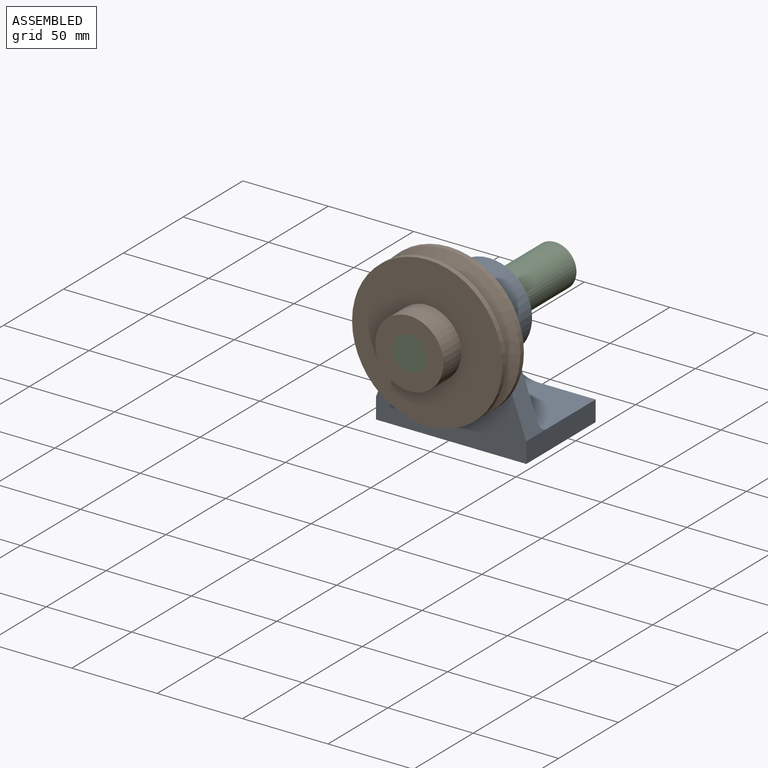
[diagram: assembled view]
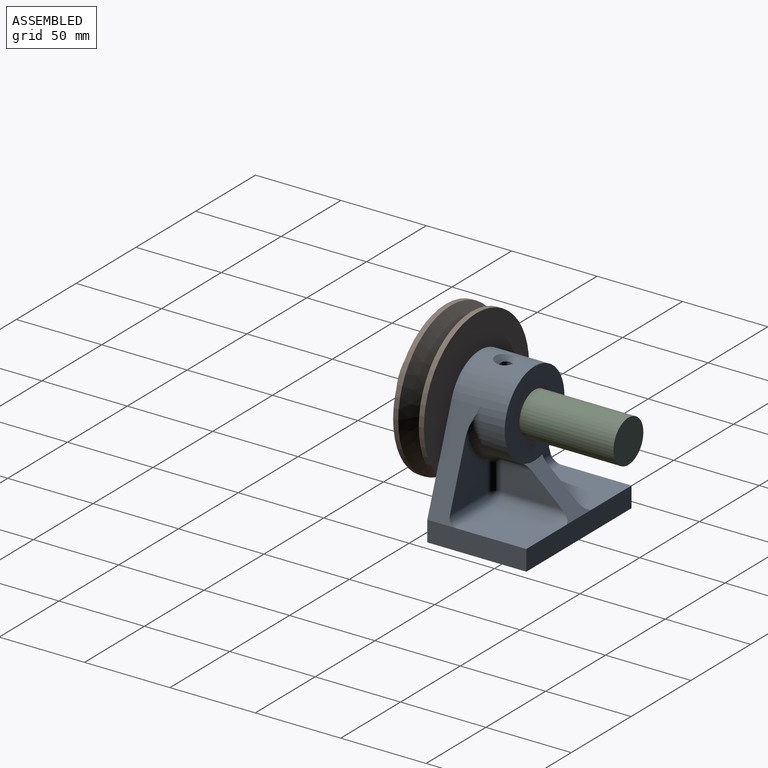
[diagram: assembled view, second angle]
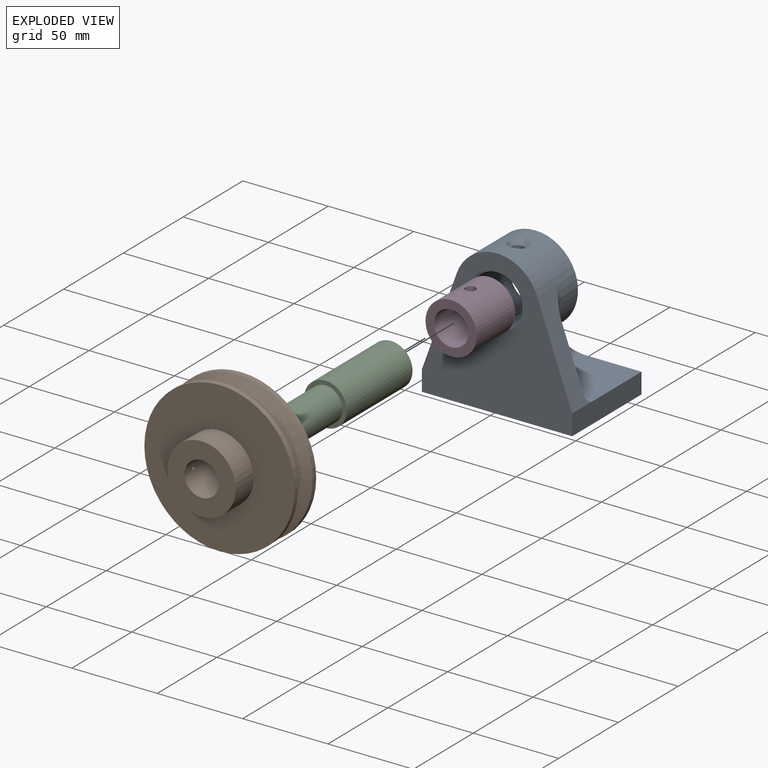
[diagram: exploded view]
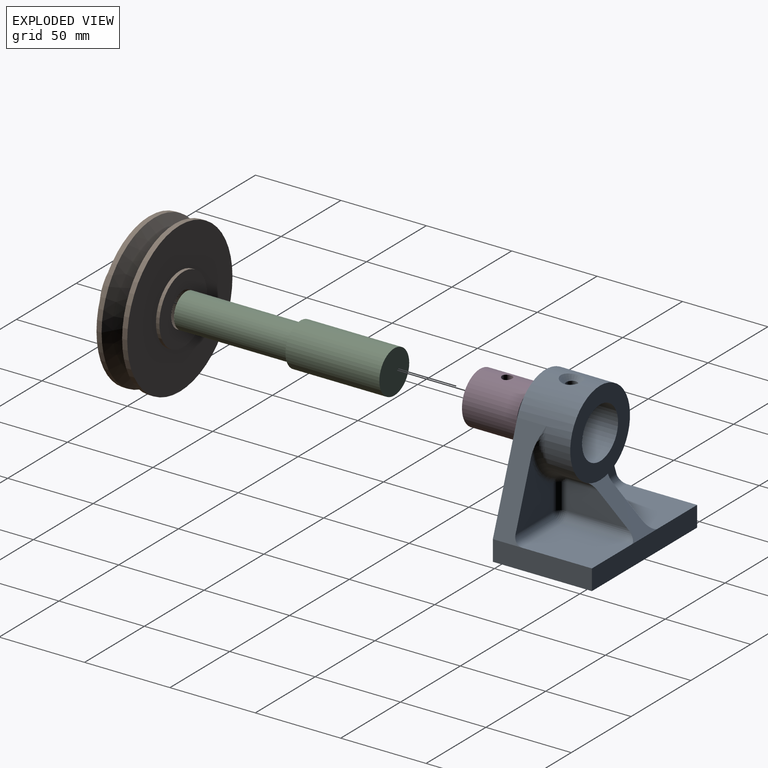
[diagram: exploded view, second angle]
ASSEMBLY  parts=4 mates=6
PART A: 33 faces, bbox 88x58x85.3 mm
  f0: plane 35.93x31.19mm, normal (0,1,0), area 634.4mm2, adj f9,f26,f29,f30
  f1: plane 41x33mm, normal (0,0,1), area 1353mm2, adj f4,f12,f26,f27
  f2: plane 35.93x31.19mm, normal (0,1,0), area 634.4mm2, adj f7,f20,f23,f25
  f3: plane 88x85mm, normal (0,-1,0), area 4728.6mm2, adj f4,f5,f6,f7,f8,f9,f10
  f4: plane 58x12mm, normal (-1,0,0), area 696mm2, adj f1,f3,f5,f9,f12
  f5: plane 88x58mm, normal (0,0,-1), area 5104mm2, adj f3,f4,f6,f12
  f6: plane 58x12mm, normal (1,0,0), area 696mm2, adj f3,f5,f7,f11,f12
  f7: plane 56.52x20.5mm, normal (0.94,0,0.34), area 758.6mm2, adj f2,f3,f6,f8,f20,f25
  f8: cylinder r=25mm len=50mm, axis (0,1,0), area 3014mm2, adj f3,f7,f9,f13,f16,f17,f22,f25
  f9: plane 56.52x20.5mm, normal (-0.94,0,0.34), area 758.6mm2, adj f0,f3,f4,f8,f26,f29
  f10: cylinder r=15mm len=32mm, axis (0,1,0), area 2981.5mm2, adj f3,f13,f18
  f11: plane 41x33mm, normal (0,0,1), area 1353mm2, adj f6,f12,f19,f20
  f12: plane 88x12mm, normal (0,1,0), area 1056mm2, adj f1,f4,f5,f6,f11,f16
  f13: plane 50x50mm, normal (0,1,0), area 1256.6mm2, adj f8,f10
  f14: plane 35.35x15.09mm, normal (1,0,0), area 404.7mm2, adj f16,f19,f22,f23
  f15: plane 35.35x15.09mm, normal (-1,0,0), area 404.7mm2, adj f16,f27,f30,f32
  f16: plane 27.97x24.74mm, normal (0,0.66,0.75), area 444.2mm2, adj f8,f12,f14,f15,f19,f22,f27,f32
  f17: cone r=6.3mm half-angle=45deg, axis (0.05,0,1), area 109.7mm2, adj f8,f18
  f18: cylinder r=3.3mm len=7.66mm, axis (0.05,0,1), area 148.9mm2, adj f10,f17
  f19: cylinder r=5mm len=41mm, axis (0,-1,0), area 305.9mm2, adj f11,f14,f16,f21
  f20: cylinder r=5mm len=33mm, axis (1,0,0), area 254mm2, adj f2,f7,f11,f21
  f21: sphere r=5mm, area 39.3mm2, adj f19,f20,f23
  f22: cylinder r=5mm len=18.29mm, axis (0,1,0), area 91.4mm2, adj f8,f14,f16,f24
  f23: cylinder r=5mm len=15.09mm, axis (0,0,1), area 118.5mm2, adj f2,f14,f21,f24
  f24: sphere r=5mm, area 29.9mm2, adj f22,f23,f25
  f25: torus R=30mm, axis (0,1,0), area 255.6mm2, adj f2,f7,f8,f24
  f26: cylinder r=5mm len=33mm, axis (1,0,0), area 254mm2, adj f0,f1,f9,f28
  f27: cylinder r=5mm len=41mm, axis (0,1,0), area 305.9mm2, adj f1,f15,f16,f28
  f28: sphere r=5mm, area 39.3mm2, adj f26,f27,f30
  f29: torus R=30mm, axis (0,1,0), area 255.6mm2, adj f0,f8,f9,f31
  f30: cylinder r=5mm len=15.09mm, axis (0,0,-1), area 118.5mm2, adj f0,f15,f28,f31
  f31: sphere r=5mm, area 29.9mm2, adj f29,f30,f32
  f32: cylinder r=5mm len=18.29mm, axis (0,1,0), area 91.4mm2, adj f8,f15,f16,f31
PART B: 13 faces, bbox 88x88x35 mm
  f0: plane 40x40mm, normal (0,0,-1), area 942.5mm2, adj f1,f10
  f1: cylinder r=10mm len=35mm, axis (0,0,-1), area 2196.6mm2, adj f0,f2,f12
  f2: plane 40x40mm, normal (0,0,1), area 942.5mm2, adj f1,f3
  f3: cylinder r=20mm len=40mm, axis (0,0,-1), area 1875.2mm2, adj f2,f4,f11
  f4: plane 88x88mm, normal (0,0,1), area 4825.5mm2, adj f3,f5
  f5: cylinder r=44mm len=88mm, axis (0,0,-1), area 829.4mm2, adj f4,f6
  f6: cone r=44mm half-angle=60deg, axis (0,0,1), area 2925.7mm2, adj f5,f7
  f7: cone r=33.61mm half-angle=60deg, axis (0,0,-1), area 2925.7mm2, adj f6,f8
  f8: cylinder r=44mm len=88mm, axis (0,0,-1), area 829.4mm2, adj f7,f9
  f9: plane 88x88mm, normal (0,0,-1), area 4825.5mm2, adj f8,f10
  f10: cylinder r=20mm len=40mm, axis (0,0,-1), area 251.3mm2, adj f0,f9
  f11: cone r=1.8mm half-angle=45deg, axis (-0.03,-1,0), area 10.2mm2, adj f3,f12
  f12: cylinder r=0.9mm len=9.2mm, axis (-0.03,-1,0), area 51.6mm2, adj f1,f11
PART C: 7 faces, bbox 25x25x122 mm
  f0: plane 25x25mm, normal (0,0,-1), area 490.9mm2, adj f1
  f1: cylinder r=12.5mm len=54.98mm, axis (0,0,-1), area 4317.8mm2, adj f0,f2
  f2: plane 25x25mm, normal (0,0,1), area 176.7mm2, adj f1,f3
  f3: cylinder r=10mm len=67mm, axis (0,0,-1), area 4181.1mm2, adj f2,f4,f5
  f4: plane 20x20mm, normal (0,0,1), area 314.2mm2, adj f3
  f5: cylinder r=3mm len=6.46mm, axis (0.1,-1,0), area 89.9mm2, adj f3,f6
  f6: cone r=3mm half-angle=59deg, axis (0.1,-1,0), area 33mm2, adj f5
PART D: 5 faces, bbox 30x32x30 mm
  f0: plane 30x30mm, normal (0,-1,0), area 392.7mm2, adj f2,f3
  f1: plane 30x30mm, normal (0,1,0), area 392.7mm2, adj f2,f3
  f2: cylinder r=15mm len=32mm, axis (0,1,0), area 2987.3mm2, adj f0,f1,f4
  f3: cylinder r=10mm len=32mm, axis (0,1,0), area 1982mm2, adj f0,f1,f4
  f4: cylinder r=3mm len=6mm, axis (0,0,1), area 95.7mm2, adj f2,f3
PLACE A t=(-44.97,-78.01,53.24)mm
PLACE B rot(axis=(0.58,0.58,-0.58),120deg) t=(-44.97,-90.01,113.24)mm
PLACE C rot(axis=(0.58,0.58,-0.58),120deg) t=(-54.97,-125.01,113.24)mm
PLACE D t=(-44.97,-58.01,128.24)mm
MATE slider B.f1 <-> C.f1  axis (0,1,0) through (-44.97,-107.51,113.24)mm
MATE fastened D.f2 <-> C.f1  axis (0,1,0) through (-44.97,-58.01,113.24)mm
MATE slider A.f8 <-> D.f2  axis (0,1,0) through (-44.97,-74.01,113.24)mm
MATE planar D.f2 <-> B.f1  axis (0,-1,0) through (-44.97,-90.01,113.24)mm
MATE slider A.f8 <-> C.f1  axis (0,1,0) through (-44.97,-90.01,113.24)mm
MATE fastened A.f8 <-> D.f2  axis (0,1,0) through (-44.97,-58.01,113.24)mm
